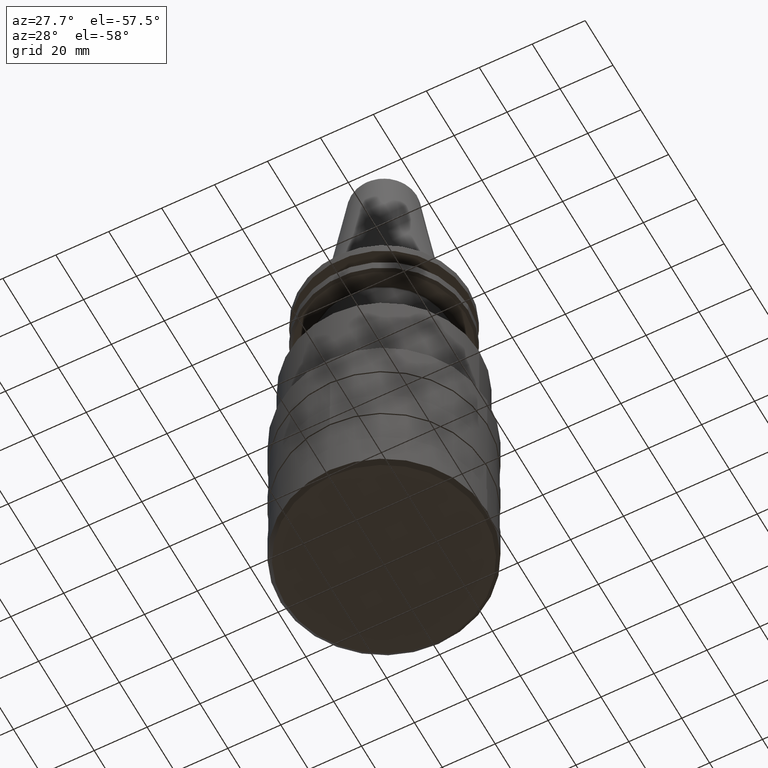
[diagram: clean part render]
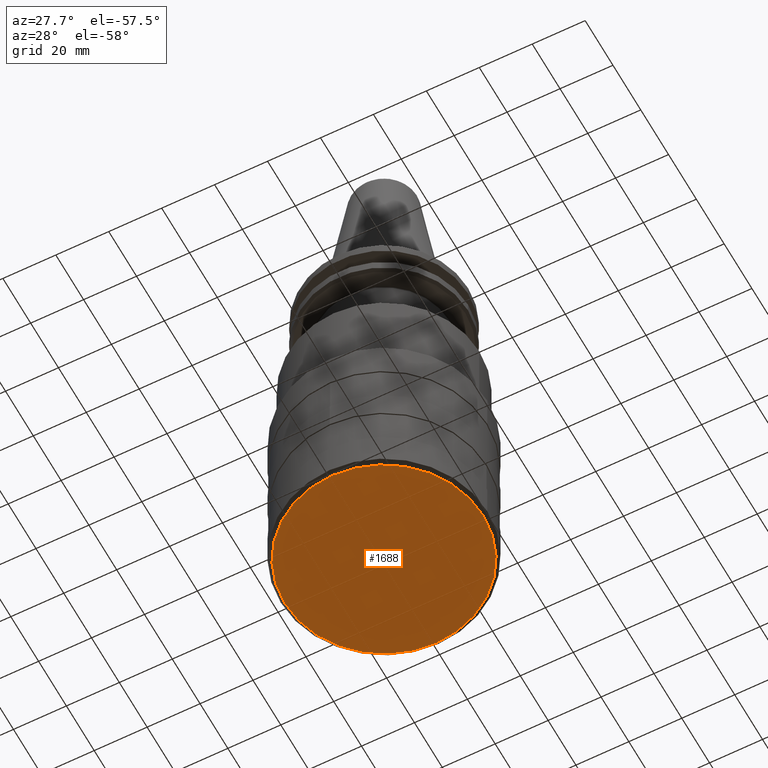
[diagram: same view with one face highlighted and labeled with its STEP entity id]
A machine part, auxiliary view. The second image highlights one B-rep face of the part: STEP entity #1688.
In plain terms, the highlighted planar face has unit normal (0, 0, -1).
Its self-contained STEP definition (entity closure, byte-faithful):
#6 = VERTEX_POINT ( 'NONE', #125 ) ;
#14 = ORIENTED_EDGE ( 'NONE', *, *, #913, .T. ) ;
#31 = AXIS2_PLACEMENT_3D ( 'NONE', #1927, #1798, #1237 ) ;
#125 = CARTESIAN_POINT ( 'NONE',  ( 37.49999999999997200, 0.0000000000000000000, -150.0000000000000300 ) ) ;
#136 = FACE_OUTER_BOUND ( 'NONE', #643, .T. ) ;
#439 = AXIS2_PLACEMENT_3D ( 'NONE', #1099, #735, #732 ) ;
#643 = EDGE_LOOP ( 'NONE', ( #1141, #14 ) ) ;
#699 = EDGE_CURVE ( 'NONE', #6, #1069, #1689, .T. ) ;
#732 = DIRECTION ( 'NONE',  ( -1.000000000000000000, 0.0000000000000000000, -0.0000000000000000000 ) ) ;
#735 = DIRECTION ( 'NONE',  ( 0.0000000000000000000, 0.0000000000000000000, -1.000000000000000000 ) ) ;
#795 = DIRECTION ( 'NONE',  ( 1.000000000000000000, 0.0000000000000000000, 0.0000000000000000000 ) ) ;
#801 = DIRECTION ( 'NONE',  ( -0.0000000000000000000, 0.0000000000000000000, -1.000000000000000000 ) ) ;
#913 = EDGE_CURVE ( 'NONE', #1069, #6, #1692, .T. ) ;
#1069 = VERTEX_POINT ( 'NONE', #1085 ) ;
#1082 = PLANE ( 'NONE',  #439 ) ;
#1085 = CARTESIAN_POINT ( 'NONE',  ( -37.49999999999997200, 4.684274006738621000E-015, -150.0000000000000300 ) ) ;
#1099 = CARTESIAN_POINT ( 'NONE',  ( 37.94999999999999600, -37.94999999999999600, -150.0000000000000000 ) ) ;
#1141 = ORIENTED_EDGE ( 'NONE', *, *, #699, .T. ) ;
#1237 = DIRECTION ( 'NONE',  ( 1.000000000000000000, 0.0000000000000000000, 0.0000000000000000000 ) ) ;
#1613 = AXIS2_PLACEMENT_3D ( 'NONE', #1651, #801, #795 ) ;
#1651 = CARTESIAN_POINT ( 'NONE',  ( 0.0000000000000000000, 0.0000000000000000000, -150.0000000000000300 ) ) ;
#1688 = ADVANCED_FACE ( 'NONE', ( #136 ), #1082, .T. ) ;
#1689 = CIRCLE ( 'NONE', #31, 37.49999999999997200 ) ;
#1692 = CIRCLE ( 'NONE', #1613, 37.49999999999997200 ) ;
#1798 = DIRECTION ( 'NONE',  ( -0.0000000000000000000, 0.0000000000000000000, -1.000000000000000000 ) ) ;
#1927 = CARTESIAN_POINT ( 'NONE',  ( 0.0000000000000000000, 0.0000000000000000000, -150.0000000000000300 ) ) ;